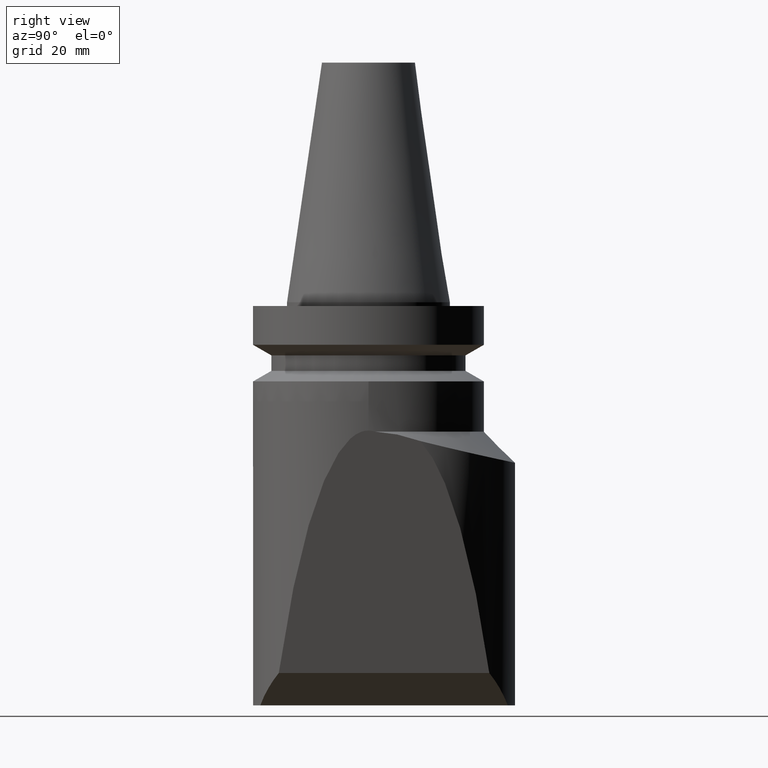
[diagram: clean part render]
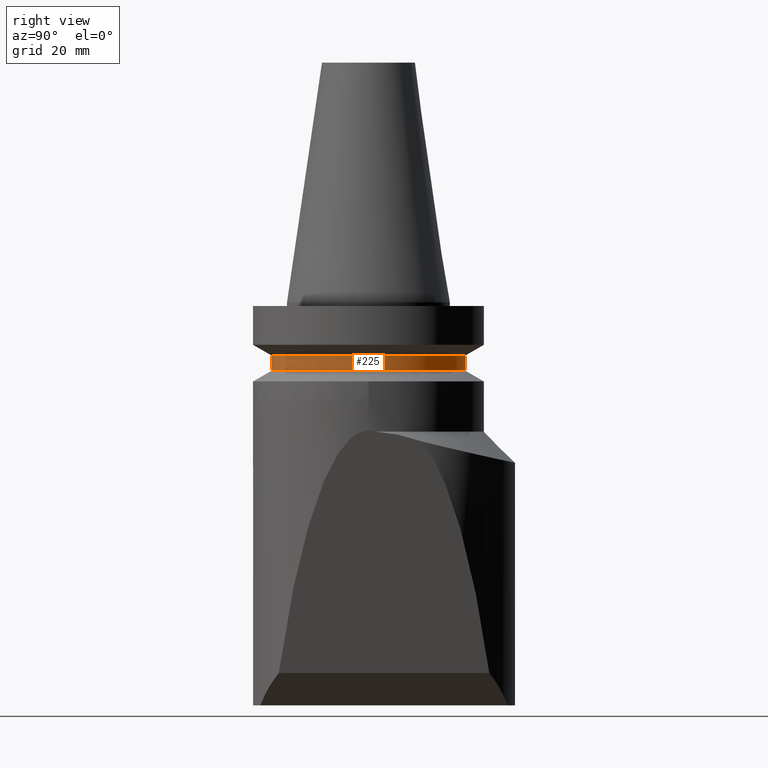
[diagram: same view with one face highlighted and labeled with its STEP entity id]
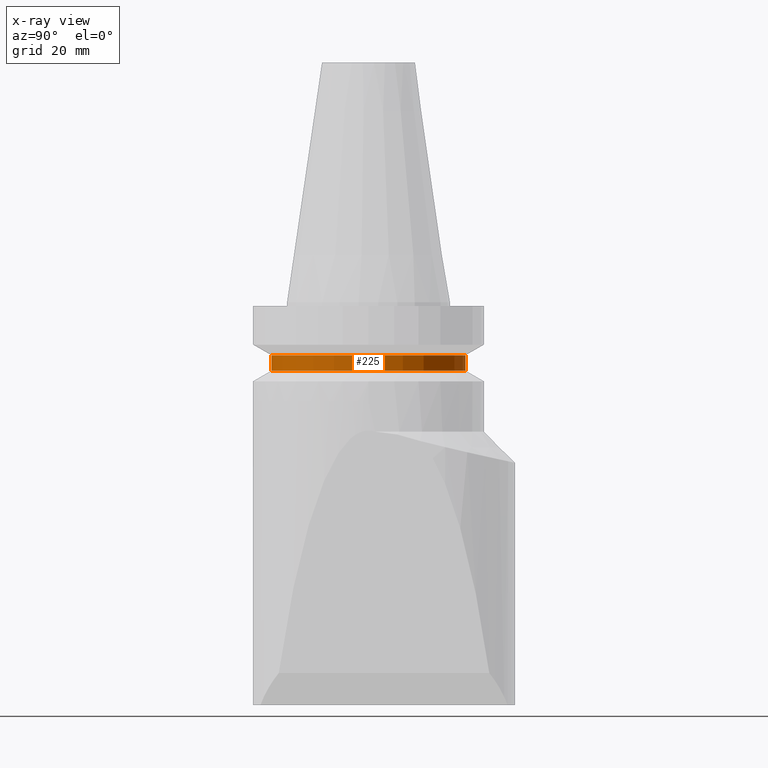
[diagram: x-ray of the same camera — body ghosted, the highlighted face saturated]
A machine part, right view. The second image highlights one B-rep face of the part: STEP entity #225.
The next image is the same camera in x-ray: the body ghosted, the highlighted face saturated — about 0% of this face is hidden behind the body in this view.
In plain terms, the highlighted cylindrical surface (bore or boss wall) has radius 26.5 mm, axis along (0, -0, 1).
Its self-contained STEP definition (entity closure, byte-faithful):
#127=EDGE_CURVE('Unnamed[1]',#319,#319,#320,.T.);
#191=EDGE_CURVE('Unnamed[1]',#413,#413,#414,.T.);
#225=ADVANCED_FACE('Unnamed[1]',(#453,#454),#455,.T.);
#319=VERTEX_POINT('',#586);
#320=CIRCLE('',#587,26.5000000000001);
#413=VERTEX_POINT('',#728);
#414=CIRCLE('',#729,26.5000000000001);
#453=FACE_BOUND('',#799,.T.);
#454=FACE_BOUND('',#800,.T.);
#455=CYLINDRICAL_SURFACE('',#801,26.5000000000001);
#586=CARTESIAN_POINT('',(-4.39117002103215E-015,-26.5000000000001,-18.7132486540518));
#587=AXIS2_PLACEMENT_3D('',#902,#903,#904);
#728=CARTESIAN_POINT('',(-4.13237170103344E-015,-26.5000000000001,-14.486751345948));
#729=AXIS2_PLACEMENT_3D('',#1016,#1017,#1018);
#799=EDGE_LOOP('',(#1056));
#800=EDGE_LOOP('',(#1057));
#801=AXIS2_PLACEMENT_3D('',#1058,#1059,#1060);
#902=CARTESIAN_POINT('',(-1.14585600329165E-015,-3.44099728903708E-015,-18.7132486540518));
#903=DIRECTION('',(-6.12323399573676E-017,1.97960454588128E-016,-1.0));
#904=DIRECTION('',(-1.22464679914735E-016,-1.0,-1.97960454588128E-016));
#1016=CARTESIAN_POINT('',(-8.87057683292944E-016,-4.27767661746479E-015,-14.486751345948));
#1017=DIRECTION('',(-6.12323399573676E-017,1.97960454588128E-016,-1.0));
#1018=DIRECTION('',(-1.22464679914735E-016,-1.0,-1.97960454588128E-016));
#1056=ORIENTED_EDGE('',*,*,#127,.F.);
#1057=ORIENTED_EDGE('',*,*,#191,.T.);
#1058=CARTESIAN_POINT('',(-1.0164568432923E-015,-3.85933695325093E-015,-16.5999999999999));
#1059=DIRECTION('',(6.12323399573676E-017,-1.97960454588128E-016,1.0));
#1060=DIRECTION('',(-1.22464679914735E-016,-1.0,-1.97960454588128E-016));